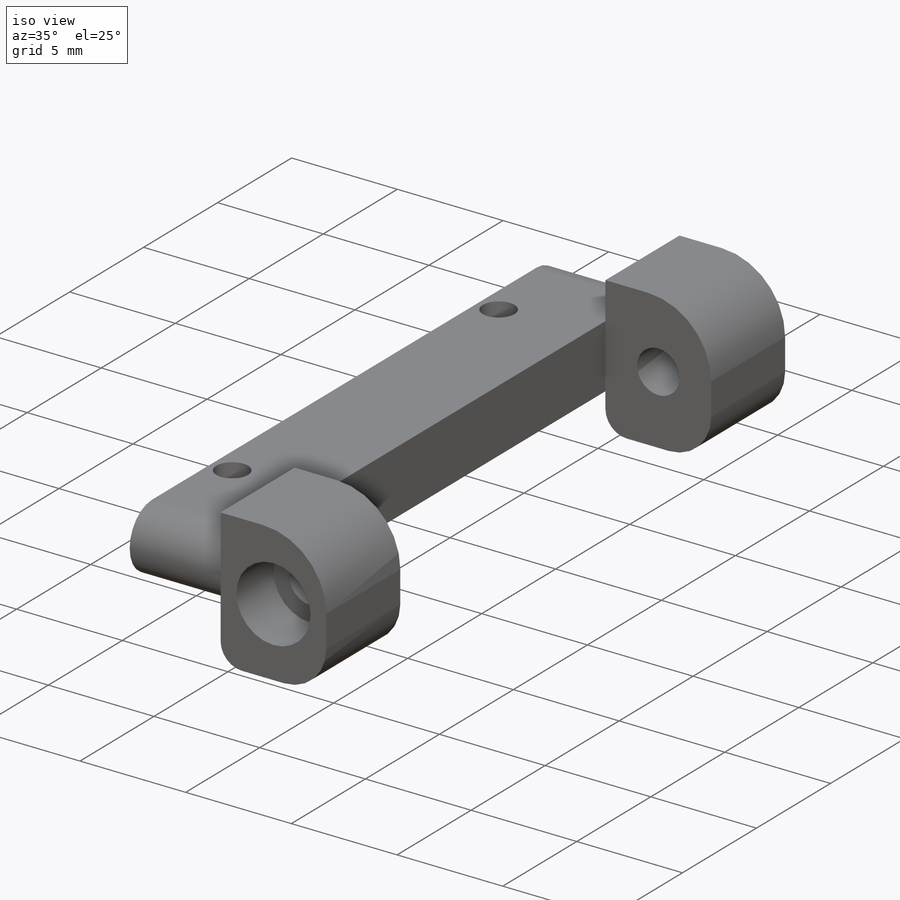
[diagram: iso view]
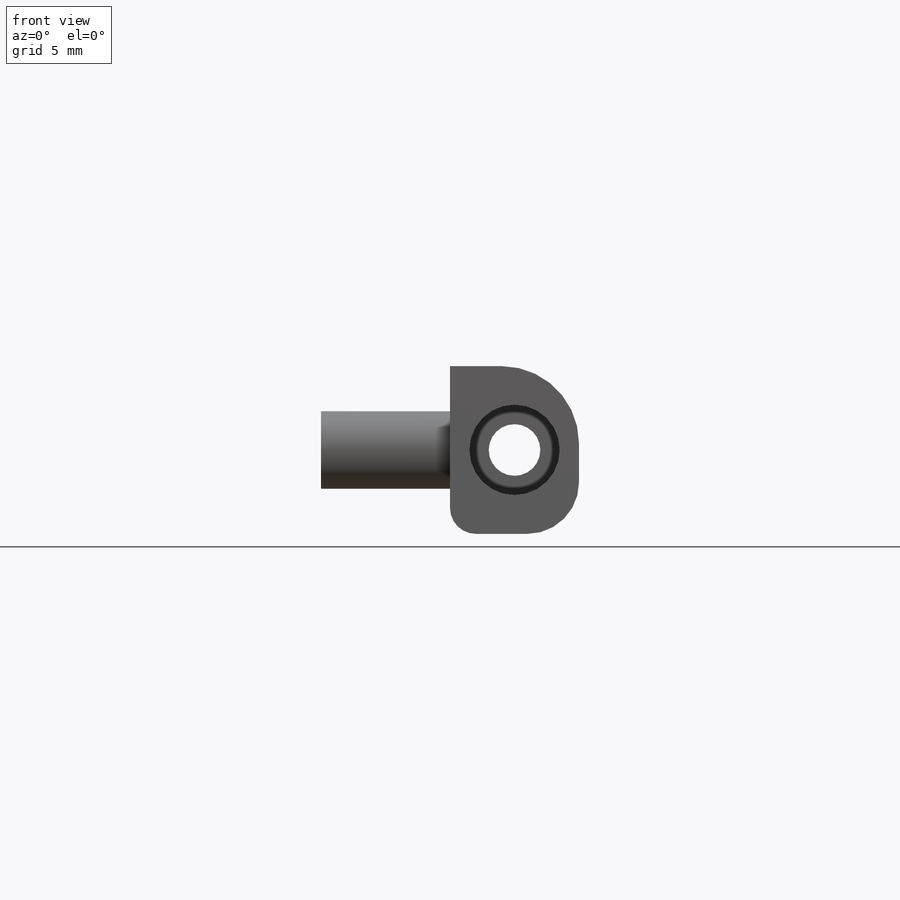
[diagram: front view]
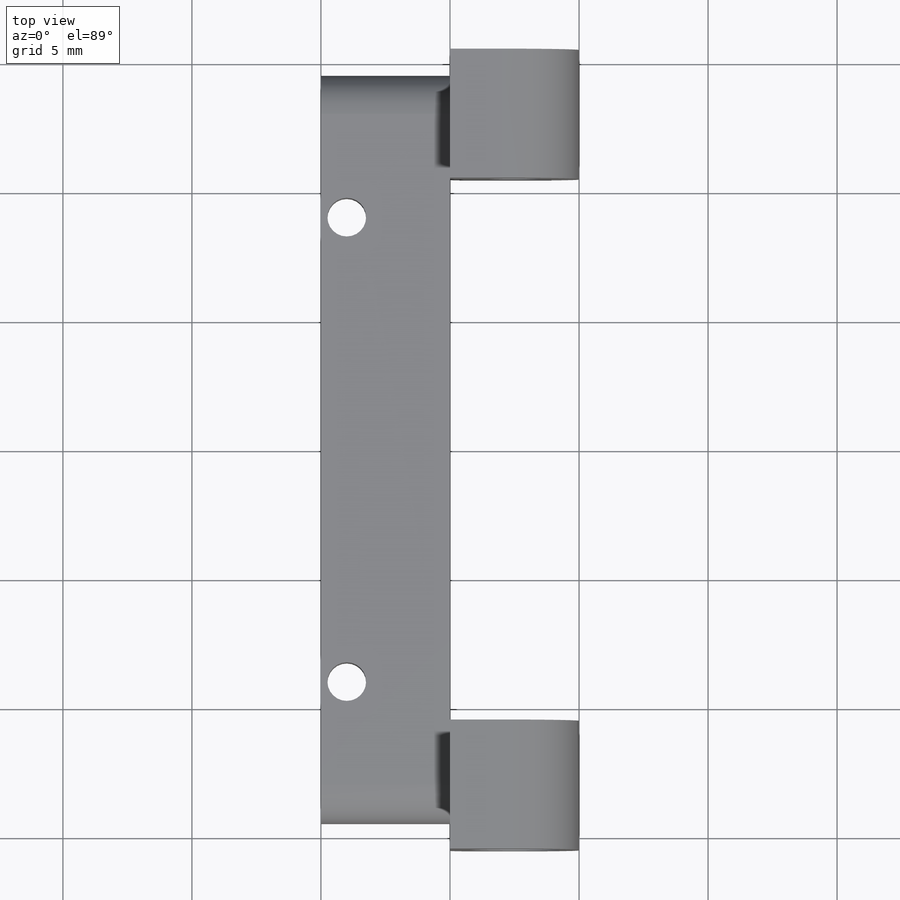
[diagram: top view]
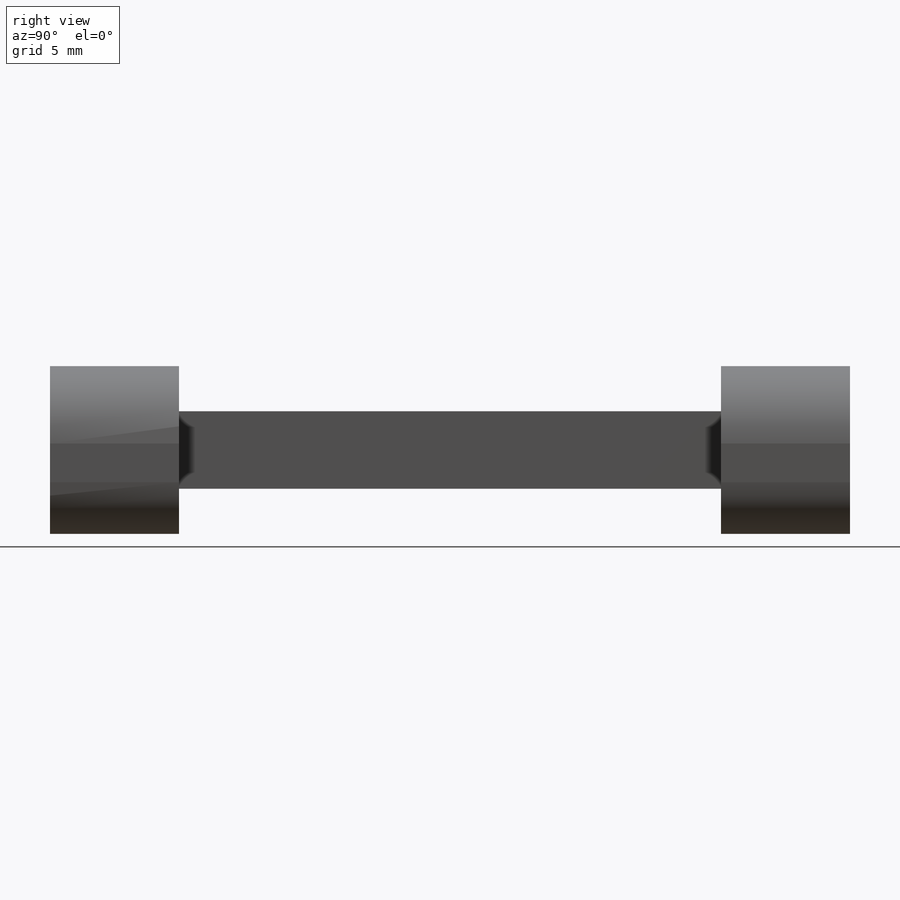
[diagram: right view]
SOLIDWORKS PART (.sldprt)
format: sldprt  version: not decoded by parser v0  size: 229,888 bytes
history: native  units: mm
features: plane x8, sketch x5, fillet x3, cut_extrude x3, extrude x2, material x1, mirror x1 (+8 scaffold rows collapsed)
feature tree (31):
  scaffold x8  (default folders/planes/origin — collapsed)
  material  "Material <sin especificar>"
  plane  "Alzado"
  plane  "Planta"
  plane  "Vista lateral"
  sketch  "Croquis1"  dims[D1=26.0mm D2=3.0mm]
  extrude  "Saliente-Extruir1"  Depth=5mm
  plane  "Plano1"  Offset=0mm
  sketch  "Croquis2"  dims[D1=5.0mm D2=6.5mm]
  extrude  "Saliente-Extruir3"  Depth=5mm
  fillet  "Redondeo1"  Radius=3mm
  fillet  "Redondeo2"  Radius=2mm
  fillet  "Redondeo3"  Radius=1mm
  plane  "Plano2"  Offset=0mm
  sketch  "Croquis4"  dims[D1=3.5mm]
  cut_extrude  "Cortar-Extruir1"  Depth=2.5mm
  plane  "Plano4"  Offset=0mm
  plane  "Plano5"  Offset=0mm
  sketch  "Croquis5"  dims[D1=2.0mm]
  cut_extrude  "Cortar-Extruir2"  Depth=2.5mm
  mirror  "Simetría2"
  plane  "Plano6"  Offset=0mm
  sketch  "Croquis6"  dims[D3=1.5mm D1=4.0mm D2=4.0mm]
  cut_extrude  "Cortar-Extruir3"  Depth=5mm
decode coverage: 13 of 14 modeling features carry decoded parameters
note: suppression state not decoded; provenance and decode notes live in map.json
